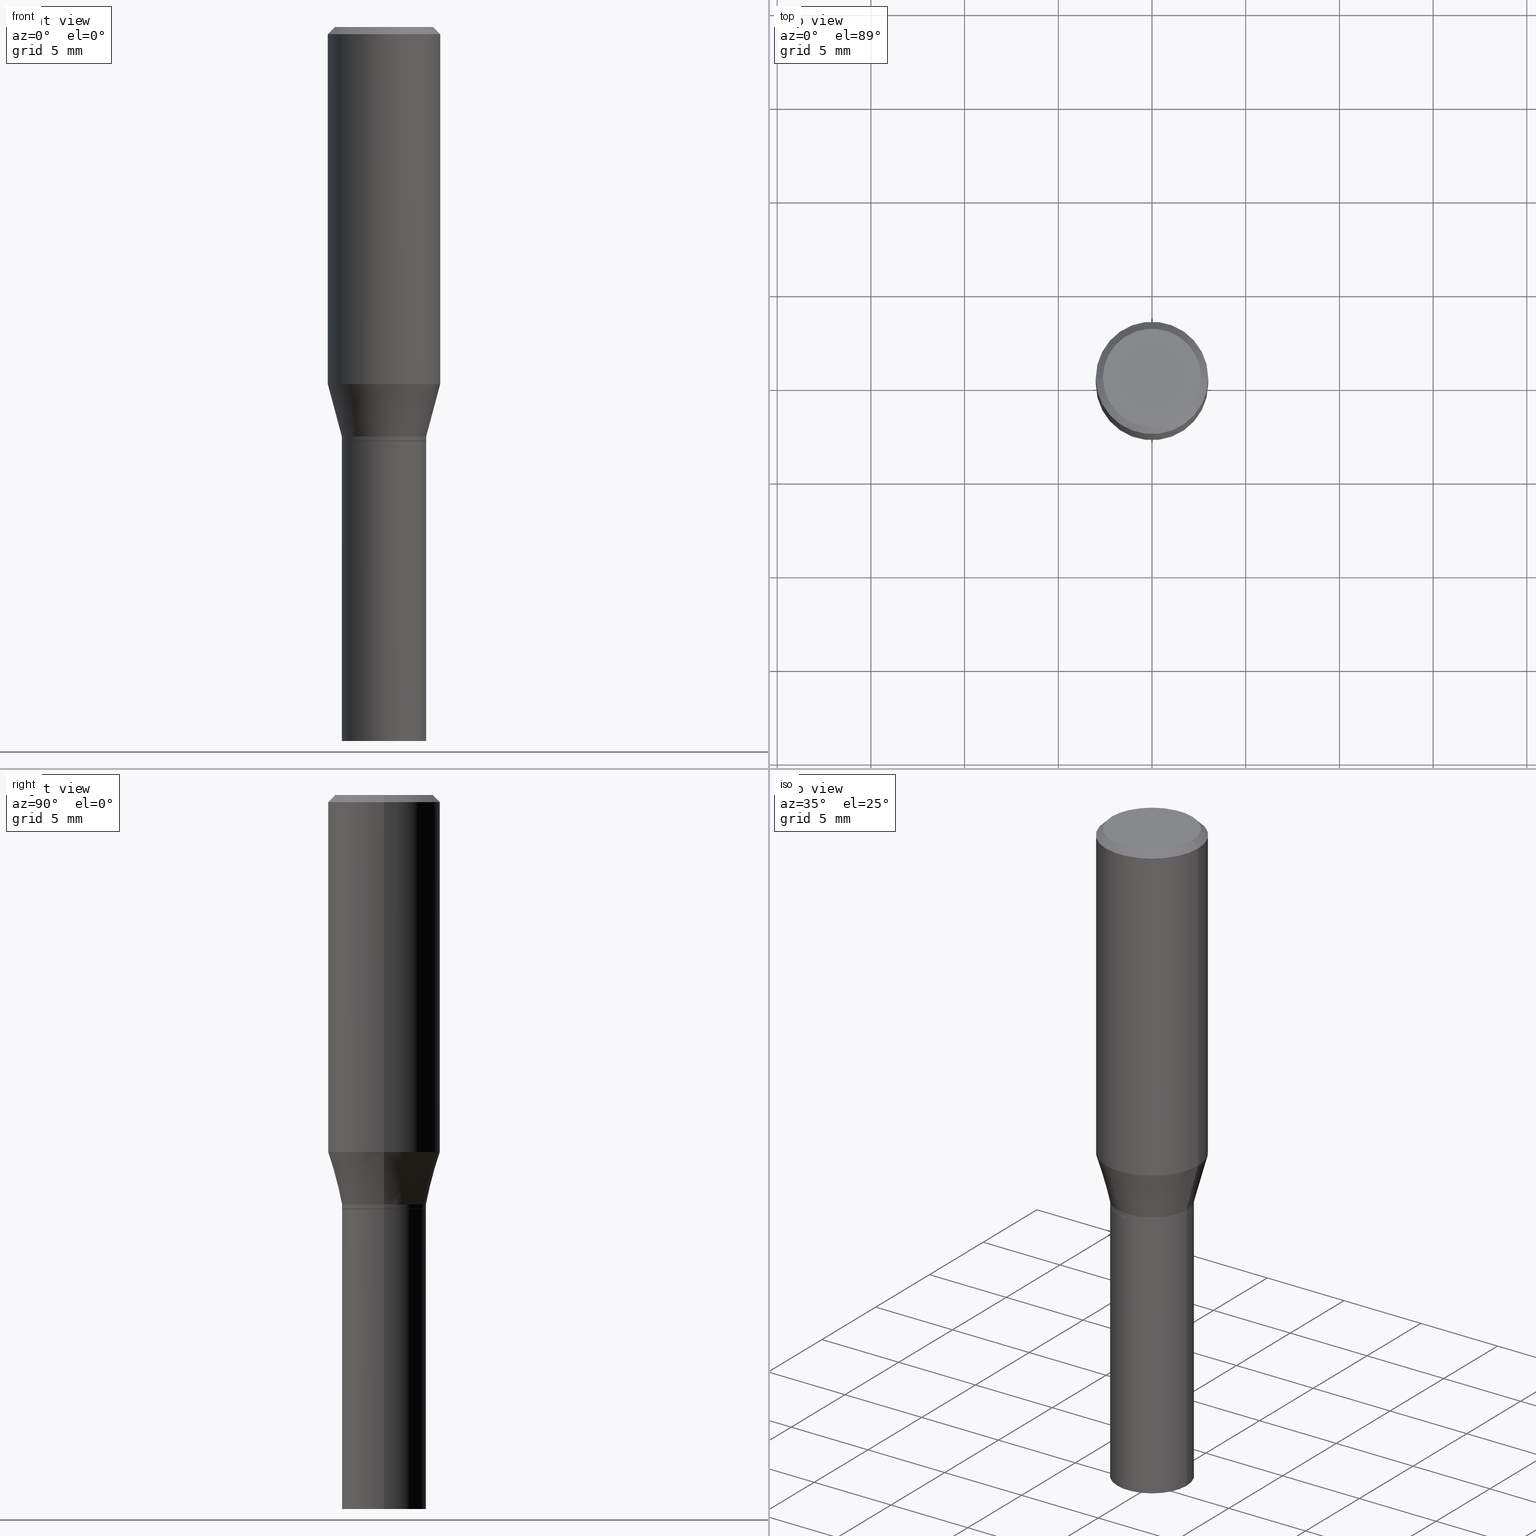
[diagram: canonical four-view strip — front | top / right | iso, engineering-drawing reading convention]
A machine part, canonical four-view strip (front | top / right | iso — engineering-drawing reading convention). The complete STEP part file that produces these views, byte-faithful:
ISO-10303-21;
HEADER;
FILE_DESCRIPTION (( 'STEP AP203' ),
    '1' );
FILE_NAME ('48785.STEP',
    '2024-03-12T19:49:54',
    ( '' ),
    ( '' ),
    'SwSTEP 2.0',
    'SolidWorks 2023',
    '' );
FILE_SCHEMA (( 'CONFIG_CONTROL_DESIGN' ));
ENDSEC;

DATA;
#1 = VECTOR ( 'NONE', #356, 39.37007874015748143 ) ;
#2 = CC_DESIGN_APPROVAL ( #143, ( #220 ) ) ;
#3 = CARTESIAN_POINT ( 'NONE',  ( 2.127802408261687534E-29, -3.037937912927421601E-15, -0.8701000000000000956 ) ) ;
#4 = DIRECTION ( 'NONE',  ( 1.000000000000000000, -6.982962677686265922E-15, 0.000000000000000000 ) ) ;
#5 = DIRECTION ( 'NONE',  ( 0.7071067811865516806, -7.319954787623268667E-15, -0.7071067811865431318 ) ) ;
#6 = PRODUCT ( '48785', '48785', '', ( #242 ) ) ;
#7 = ORIENTED_EDGE ( 'NONE', *, *, #451, .F. ) ;
#8 = AXIS2_PLACEMENT_3D ( 'NONE', #69, #457, #459 ) ;
#9 = PRODUCT_DEFINITION_FORMATION_WITH_SPECIFIED_SOURCE ( 'ANY', '', #6, .NOT_KNOWN. ) ;
#10 = CARTESIAN_POINT ( 'NONE',  ( 0.1180999999999999966, -8.625970336194650129E-16, -0.01499999999999999944 ) ) ;
#11 = ORIENTED_EDGE ( 'NONE', *, *, #74, .T. ) ;
#12 = EDGE_CURVE ( 'NONE', #95, #55, #344, .T. ) ;
#13 = DIRECTION ( 'NONE',  ( -2.445468806185136597E-29, 3.491481338843145583E-15, 1.000000000000000000 ) ) ;
#14 = ORIENTED_EDGE ( 'NONE', *, *, #290, .F. ) ;
#15 = DIRECTION ( 'NONE',  ( -2.445468806185136597E-29, 3.491481338843145583E-15, 1.000000000000000000 ) ) ;
#16 = VERTEX_POINT ( 'NONE', #105 ) ;
#17 = FACE_OUTER_BOUND ( 'NONE', #233, .T. ) ;
#18 = CIRCLE ( 'NONE', #329, 0.1180999999999999966 ) ;
#19 = ORIENTED_EDGE ( 'NONE', *, *, #67, .F. ) ;
#20 = COORDINATED_UNIVERSAL_TIME_OFFSET ( 5, 0, .BEHIND. ) ;
#21 = ORIENTED_EDGE ( 'NONE', *, *, #456, .F. ) ;
#22 =( CONVERSION_BASED_UNIT ( 'INCH', #170 ) LENGTH_UNIT ( ) NAMED_UNIT ( #465 ) );
#23 = FACE_OUTER_BOUND ( 'NONE', #200, .T. ) ;
#24 = APPLICATION_CONTEXT ( 'configuration controlled 3d designs of mechanical parts and assemblies' ) ;
#25 = CIRCLE ( 'NONE', #77, 0.1180999999999999966 ) ;
#26 = DATE_AND_TIME ( #411, #261 ) ;
#27 = CARTESIAN_POINT ( 'NONE',  ( -0.08859999999999995657, -2.373482235655541495E-15, -0.8601000000000001977 ) ) ;
#28 = VECTOR ( 'NONE', #153, 39.37007874015748143 ) ;
#29 = LOCAL_TIME ( 15, 49, 54.00000000000000000, #240 ) ;
#30 = CARTESIAN_POINT ( 'NONE',  ( 0.000000000000000000, 0.000000000000000000, 0.000000000000000000 ) ) ;
#31 = EDGE_LOOP ( 'NONE', ( #202, #88 ) ) ;
#32 = CC_DESIGN_DATE_AND_TIME_ASSIGNMENT ( #372, #103, ( #220 ) ) ;
#33 =( NAMED_UNIT ( * ) SI_UNIT ( $, .STERADIAN. ) SOLID_ANGLE_UNIT ( ) );
#34 = DIRECTION ( 'NONE',  ( 1.000000000000000000, -6.982962677686265922E-15, 0.000000000000000000 ) ) ;
#35 = PERSON ( 'UNSPECIFIED', 'UNSPECIFIED', 'UNSPECIFIED', ('UNSPECIFIED'), ('UNSPECIFIED'), ('UNSPECIFIED') ) ;
#36 = CALENDAR_DATE ( 2024, 12, 3 ) ;
#37 = FACE_OUTER_BOUND ( 'NONE', #194, .T. ) ;
#38 = AXIS2_PLACEMENT_3D ( 'NONE', #224, #54, #199 ) ;
#39 = CYLINDRICAL_SURFACE ( 'NONE', #90, 0.08860000000000008147 ) ;
#40 = APPROVAL_ROLE ( '' ) ;
#41 = EDGE_CURVE ( 'NONE', #132, #335, #18, .T. ) ;
#42 = DIRECTION ( 'NONE',  ( 1.000000000000000000, -6.982962677686264344E-15, 0.000000000000000000 ) ) ;
#43 = ORIENTED_EDGE ( 'NONE', *, *, #161, .T. ) ;
#44 = PLANE ( 'NONE',  #70 ) ;
#45 = ADVANCED_FACE ( 'NONE', ( #23 ), #277, .F. ) ;
#46 = CARTESIAN_POINT ( 'NONE',  ( -0.08860000000000017861, -2.406651308374549669E-15, -0.8696000000000000396 ) ) ;
#47 = CYLINDRICAL_SURFACE ( 'NONE', #38, 0.1180999999999999966 ) ;
#48 = DIRECTION ( 'NONE',  ( 1.000000000000000000, -6.982962677686266711E-15, 4.876176775795935232E-29 ) ) ;
#49 = ORIENTED_EDGE ( 'NONE', *, *, #320, .F. ) ;
#50 = EDGE_CURVE ( 'NONE', #66, #443, #217, .T. ) ;
#51 = VECTOR ( 'NONE', #177, 39.37007874015748143 ) ;
#52 = AXIS2_PLACEMENT_3D ( 'NONE', #312, #311, #309 ) ;
#53 = EDGE_CURVE ( 'NONE', #404, #164, #197, .T. ) ;
#54 = DIRECTION ( 'NONE',  ( -2.445468806185136597E-29, 3.491481338843145583E-15, 1.000000000000000000 ) ) ;
#55 = VERTEX_POINT ( 'NONE', #314 ) ;
#56 = LINE ( 'NONE', #359, #330 ) ;
#57 = VERTEX_POINT ( 'NONE', #112 ) ;
#58 = CARTESIAN_POINT ( 'NONE',  ( 0.08809999999999999776, -3.653136924831581152E-15, -0.8700999999999999845 ) ) ;
#59 = ORIENTED_EDGE ( 'NONE', *, *, #316, .T. ) ;
#60 = AXIS2_PLACEMENT_3D ( 'NONE', #305, #409, #84 ) ;
#61 = PERSON_AND_ORGANIZATION ( #35, #116 ) ;
#62 = ORIENTED_EDGE ( 'NONE', *, *, #397, .F. ) ;
#63 = PERSON_AND_ORGANIZATION ( #35, #116 ) ;
#64 = DIRECTION ( 'NONE',  ( -2.445468806185136597E-29, 3.491481338843145583E-15, 1.000000000000000000 ) ) ;
#65 = CALENDAR_DATE ( 2024, 12, 3 ) ;
#66 = VERTEX_POINT ( 'NONE', #248 ) ;
#67 = EDGE_CURVE ( 'NONE', #16, #348, #450, .T. ) ;
#68 = PERSON_AND_ORGANIZATION ( #35, #116 ) ;
#69 = CARTESIAN_POINT ( 'NONE',  ( 0.000000000000000000, 0.000000000000000000, 0.000000000000000000 ) ) ;
#70 = AXIS2_PLACEMENT_3D ( 'NONE', #114, #186, #219 ) ;
#71 = CC_DESIGN_APPROVAL ( #247, ( #9 ) ) ;
#72 = DIRECTION ( 'NONE',  ( 1.000000000000000000, -6.982962677686266711E-15, 0.000000000000000000 ) ) ;
#73 = LINE ( 'NONE', #288, #1 ) ;
#74 = EDGE_CURVE ( 'NONE', #164, #348, #175, .T. ) ;
#75 = SHAPE_DEFINITION_REPRESENTATION ( #398, #101 ) ;
#76 = CARTESIAN_POINT ( 'NONE',  ( 2.126579673858595013E-29, -3.036192172257999703E-15, -0.8696000000000000396 ) ) ;
#77 = AXIS2_PLACEMENT_3D ( 'NONE', #436, #360, #125 ) ;
#78 = CARTESIAN_POINT ( 'NONE',  ( 2.103347720199836549E-29, -3.003023099538990346E-15, -0.8601000000000001977 ) ) ;
#79 = EDGE_CURVE ( 'NONE', #443, #66, #82, .T. ) ;
#80 = DIRECTION ( 'NONE',  ( -2.445468806185136597E-29, 3.491481338843145583E-15, 1.000000000000000000 ) ) ;
#81 = DIRECTION ( 'NONE',  ( 1.000000000000000000, -6.982962677686265922E-15, 4.883331232093008327E-29 ) ) ;
#82 = CIRCLE ( 'NONE', #52, 0.08859999999999999820 ) ;
#83 = LINE ( 'NONE', #10, #251 ) ;
#84 = DIRECTION ( 'NONE',  ( 1.000000000000000000, -6.982962677686264344E-15, 0.000000000000000000 ) ) ;
#85 = EDGE_LOOP ( 'NONE', ( #126, #229, #140, #347 ) ) ;
#86 = ADVANCED_FACE ( 'NONE', ( #454 ), #115, .T. ) ;
#87 = DIRECTION ( 'NONE',  ( -2.445468806185136877E-29, 3.491481338843145188E-15, 1.000000000000000000 ) ) ;
#88 = ORIENTED_EDGE ( 'NONE', *, *, #238, .F. ) ;
#89 = AXIS2_PLACEMENT_3D ( 'NONE', #203, #434, #336 ) ;
#90 = AXIS2_PLACEMENT_3D ( 'NONE', #259, #80, #325 ) ;
#91 = ADVANCED_FACE ( 'NONE', ( #109 ), #243, .T. ) ;
#92 = AXIS2_PLACEMENT_3D ( 'NONE', #405, #232, #228 ) ;
#93 = CC_DESIGN_PERSON_AND_ORGANIZATION_ASSIGNMENT ( #236, #343, ( #9 ) ) ;
#94 = FACE_OUTER_BOUND ( 'NONE', #85, .T. ) ;
#95 = VERTEX_POINT ( 'NONE', #447 ) ;
#96 = DIRECTION ( 'NONE',  ( 1.000000000000000000, -6.982962677686267499E-15, 4.876176775795935793E-29 ) ) ;
#97 = ORIENTED_EDGE ( 'NONE', *, *, #408, .T. ) ;
#98 = ADVANCED_FACE ( 'NONE', ( #386 ), #169, .F. ) ;
#99 =( LENGTH_UNIT ( ) NAMED_UNIT ( * ) SI_UNIT ( $, .METRE. ) );
#100 = ORIENTED_EDGE ( 'NONE', *, *, #107, .T. ) ;
#101 = ADVANCED_BREP_SHAPE_REPRESENTATION ( '48785', ( #252, #249, #310 ), #270 ) ;
#102 = AXIS2_PLACEMENT_3D ( 'NONE', #381, #64, #178 ) ;
#103 = DATE_TIME_ROLE ( 'creation_date' ) ;
#104 = LOCAL_TIME ( 15, 49, 54.00000000000000000, #284 ) ;
#105 = CARTESIAN_POINT ( 'NONE',  ( 0.08860000000000017861, -3.654882665501004233E-15, -0.8696000000000000396 ) ) ;
#106 = PERSON_AND_ORGANIZATION ( #35, #116 ) ;
#107 = EDGE_CURVE ( 'NONE', #57, #370, #294, .T. ) ;
#108 = CARTESIAN_POINT ( 'NONE',  ( 2.126579673858595013E-29, -3.036192172257999703E-15, -0.8696000000000000396 ) ) ;
#109 = FACE_OUTER_BOUND ( 'NONE', #413, .T. ) ;
#110 = PERSON_AND_ORGANIZATION ( #35, #116 ) ;
#111 = DIRECTION ( 'NONE',  ( -0.2588190451025210170, 5.211531920934547886E-15, 0.9659258262890682012 ) ) ;
#112 = CARTESIAN_POINT ( 'NONE',  ( -0.1031000000000000111, 7.461295621107772493E-16, -1.900413116462341961E-16 ) ) ;
#113 = DIRECTION ( 'NONE',  ( -2.445468806185136597E-29, 3.491481338843145583E-15, 1.000000000000000000 ) ) ;
#114 = CARTESIAN_POINT ( 'NONE',  ( 6.186904932430243507E-16, 0.08859999999999695897, -0.8701000000000003176 ) ) ;
#115 = CONICAL_SURFACE ( 'NONE', #338, 0.08859999999999995657, 0.2617993877991496854 ) ;
#116 = ORGANIZATION ( 'UNSPECIFIED', 'UNSPECIFIED', '' ) ;
#117 = CARTESIAN_POINT ( 'NONE',  ( 3.668203209277705088E-31, -5.237222008264718399E-17, -0.01499999999999999944 ) ) ;
#118 = EDGE_CURVE ( 'NONE', #66, #209, #149, .T. ) ;
#119 = CC_DESIGN_PERSON_AND_ORGANIZATION_ASSIGNMENT ( #339, #453, ( #220 ) ) ;
#120 = CARTESIAN_POINT ( 'NONE',  ( 4.647400995173613138E-45, -6.635256932220833331E-31, -1.900413116462290932E-16 ) ) ;
#121 = CARTESIAN_POINT ( 'NONE',  ( -0.08809999999999999776, -2.409300535548661264E-15, -0.8700999999999999845 ) ) ;
#122 = AXIS2_PLACEMENT_3D ( 'NONE', #462, #151, #189 ) ;
#123 = DIRECTION ( 'NONE',  ( -2.445468806185136597E-29, 3.491481338843145583E-15, 1.000000000000000000 ) ) ;
#124 = EDGE_LOOP ( 'NONE', ( #378, #295, #272, #235 ) ) ;
#125 = DIRECTION ( 'NONE',  ( 1.000000000000000000, -6.982962677686265133E-15, 0.000000000000000000 ) ) ;
#126 = ORIENTED_EDGE ( 'NONE', *, *, #67, .T. ) ;
#127 = CARTESIAN_POINT ( 'NONE',  ( 0.000000000000000000, 0.000000000000000000, 0.000000000000000000 ) ) ;
#128 = EDGE_LOOP ( 'NONE', ( #437, #225, #180, #262 ) ) ;
#129 = AXIS2_PLACEMENT_3D ( 'NONE', #78, #113, #285 ) ;
#130 = EDGE_CURVE ( 'NONE', #348, #16, #146, .T. ) ;
#131 = CARTESIAN_POINT ( 'NONE',  ( 0.08860000000000008147, -6.186904932430038403E-16, 4.320292623355202969E-30 ) ) ;
#132 = VERTEX_POINT ( 'NONE', #183 ) ;
#133 = DIRECTION ( 'NONE',  ( -1.000000000000000000, 6.982962677686266711E-15, 0.000000000000000000 ) ) ;
#134 = ORIENTED_EDGE ( 'NONE', *, *, #371, .T. ) ;
#135 = PERSON_AND_ORGANIZATION ( #35, #116 ) ;
#136 = DIRECTION ( 'NONE',  ( -1.000000000000000000, 6.982962677686265922E-15, -4.876176775795935793E-29 ) ) ;
#137 = AXIS2_PLACEMENT_3D ( 'NONE', #267, #13, #48 ) ;
#138 = APPROVAL_ROLE ( '' ) ;
#139 = AXIS2_PLACEMENT_3D ( 'NONE', #441, #201, #234 ) ;
#140 = ORIENTED_EDGE ( 'NONE', *, *, #181, .F. ) ;
#141 = PERSON_AND_ORGANIZATION_ROLE ( 'classification_officer' ) ;
#142 = CARTESIAN_POINT ( 'NONE',  ( 2.103347720199836549E-29, -3.003023099538990346E-15, -0.8601000000000001977 ) ) ;
#143 = APPROVAL ( #377, 'UNSPECIFIED' ) ;
#144 = APPROVAL_DATE_TIME ( #455, #247 ) ;
#145 = DIRECTION ( 'NONE',  ( 1.000000000000000000, -6.982962677686265922E-15, 4.876176775795935793E-29 ) ) ;
#146 = CIRCLE ( 'NONE', #230, 0.08860000000000017861 ) ;
#147 = ORIENTED_EDGE ( 'NONE', *, *, #316, .F. ) ;
#148 = AXIS2_PLACEMENT_3D ( 'NONE', #426, #258, #292 ) ;
#149 = LINE ( 'NONE', #291, #173 ) ;
#150 = DIRECTION ( 'NONE',  ( -2.445468806185136597E-29, 3.491481338843145583E-15, 1.000000000000000000 ) ) ;
#151 = DIRECTION ( 'NONE',  ( -2.445468806185136597E-29, 3.491481338843145583E-15, 1.000000000000000000 ) ) ;
#152 = AXIS2_PLACEMENT_3D ( 'NONE', #422, #417, #279 ) ;
#153 = DIRECTION ( 'NONE',  ( -2.445468806185136877E-29, 3.491481338843145188E-15, 1.000000000000000000 ) ) ;
#154 = DIRECTION ( 'NONE',  ( -2.445468806185136597E-29, 3.491481338843145583E-15, 1.000000000000000000 ) ) ;
#155 = EDGE_CURVE ( 'NONE', #443, #407, #286, .T. ) ;
#156 = DIRECTION ( 'NONE',  ( 2.445468806185136597E-29, -3.491481338843145583E-15, -1.000000000000000000 ) ) ;
#157 = EDGE_LOOP ( 'NONE', ( #368, #11, #19, #420 ) ) ;
#158 = CONICAL_SURFACE ( 'NONE', #414, 0.08859999999999995657, 0.2617993877991496854 ) ;
#159 = VECTOR ( 'NONE', #265, 39.37007874015748143 ) ;
#160 = FACE_OUTER_BOUND ( 'NONE', #124, .T. ) ;
#161 = EDGE_CURVE ( 'NONE', #404, #16, #73, .T. ) ;
#162 = ORIENTED_EDGE ( 'NONE', *, *, #401, .F. ) ;
#163 = DIRECTION ( 'NONE',  ( -0.7071067811865516806, 2.468850131082300842E-15, -0.7071067811865431318 ) ) ;
#164 = VERTEX_POINT ( 'NONE', #121 ) ;
#165 = DIRECTION ( 'NONE',  ( 1.000000000000000000, -6.982962677686266711E-15, 4.876176775795935232E-29 ) ) ;
#166 = ORIENTED_EDGE ( 'NONE', *, *, #155, .T. ) ;
#167 = CARTESIAN_POINT ( 'NONE',  ( 0.1180999999999999966, -8.246878922347480654E-16, 5.758764772215000440E-30 ) ) ;
#168 = ORIENTED_EDGE ( 'NONE', *, *, #290, .T. ) ;
#169 = PLANE ( 'NONE',  #421 ) ;
#170 = LENGTH_MEASURE_WITH_UNIT ( LENGTH_MEASURE( 0.02539999999999999897 ), #99 );
#171 = CARTESIAN_POINT ( 'NONE',  ( -0.08809999999999999776, -2.411949762722772465E-15, -0.8700999999999999845 ) ) ;
#172 = VECTOR ( 'NONE', #163, 39.37007874015748854 ) ;
#173 = VECTOR ( 'NONE', #254, 39.37007874015748143 ) ;
#174 = VECTOR ( 'NONE', #296, 39.37007874015748143 ) ;
#175 = LINE ( 'NONE', #171, #282 ) ;
#176 = ADVANCED_FACE ( 'NONE', ( #429 ), #269, .T. ) ;
#177 = DIRECTION ( 'NONE',  ( -2.445468806185136877E-29, 3.491481338843145188E-15, 1.000000000000000000 ) ) ;
#178 = DIRECTION ( 'NONE',  ( 1.000000000000000000, -6.982962677686264344E-15, 0.000000000000000000 ) ) ;
#179 = COORDINATED_UNIVERSAL_TIME_OFFSET ( 5, 0, .BEHIND. ) ;
#180 = ORIENTED_EDGE ( 'NONE', *, *, #41, .T. ) ;
#181 = EDGE_CURVE ( 'NONE', #331, #95, #395, .T. ) ;
#182 = AXIS2_PLACEMENT_3D ( 'NONE', #466, #432, #42 ) ;
#183 = CARTESIAN_POINT ( 'NONE',  ( 0.1180999999999999966, -8.770601123173952432E-16, -0.01499999999999999944 ) ) ;
#184 = AXIS2_PLACEMENT_3D ( 'NONE', #127, #123, #96 ) ;
#185 = PRODUCT_RELATED_PRODUCT_CATEGORY ( 'detail', '', ( #6 ) ) ;
#186 = DIRECTION ( 'NONE',  ( 2.438088387897960049E-29, -3.491481338843145188E-15, -1.000000000000000000 ) ) ;
#187 = ADVANCED_FACE ( 'NONE', ( #216 ), #39, .T. ) ;
#188 = DIRECTION ( 'NONE',  ( -1.000000000000000000, 6.982962677686266711E-15, 0.000000000000000000 ) ) ;
#189 = DIRECTION ( 'NONE',  ( 1.000000000000000000, -6.982962677686263555E-15, 0.000000000000000000 ) ) ;
#190 = AXIS2_PLACEMENT_3D ( 'NONE', #319, #221, #257 ) ;
#191 = FACE_OUTER_BOUND ( 'NONE', #157, .T. ) ;
#192 = VERTEX_POINT ( 'NONE', #350 ) ;
#193 = CARTESIAN_POINT ( 'NONE',  ( 2.103347720199836549E-29, -3.003023099538990346E-15, -0.8601000000000001977 ) ) ;
#194 = EDGE_LOOP ( 'NONE', ( #168, #196 ) ) ;
#195 = CARTESIAN_POINT ( 'NONE',  ( 3.668203209277705088E-31, -5.237222008264718399E-17, -0.01499999999999999944 ) ) ;
#196 = ORIENTED_EDGE ( 'NONE', *, *, #425, .T. ) ;
#197 = CIRCLE ( 'NONE', #102, 0.08809999999999999776 ) ;
#198 = CIRCLE ( 'NONE', #92, 0.08859999999999995657 ) ;
#199 = DIRECTION ( 'NONE',  ( 1.000000000000000000, -6.982962677686266711E-15, 4.876176775795936353E-29 ) ) ;
#200 = EDGE_LOOP ( 'NONE', ( #207, #299 ) ) ;
#201 = DIRECTION ( 'NONE',  ( -2.445468806185136597E-29, 3.491481338843145583E-15, 1.000000000000000000 ) ) ;
#202 = ORIENTED_EDGE ( 'NONE', *, *, #53, .F. ) ;
#203 = CARTESIAN_POINT ( 'NONE',  ( 3.668203209277705088E-31, -5.237222008264718399E-17, -0.01499999999999999944 ) ) ;
#204 = ORIENTED_EDGE ( 'NONE', *, *, #392, .T. ) ;
#205 = AXIS2_PLACEMENT_3D ( 'NONE', #195, #156, #133 ) ;
#206 = SECURITY_CLASSIFICATION_LEVEL ( 'unclassified' ) ;
#207 = ORIENTED_EDGE ( 'NONE', *, *, #50, .F. ) ;
#208 = CARTESIAN_POINT ( 'NONE',  ( 3.668203209277705088E-31, -5.237222008264718399E-17, -0.01499999999999999944 ) ) ;
#209 = VERTEX_POINT ( 'NONE', #355 ) ;
#210 = APPROVAL_PERSON_ORGANIZATION ( #68, #143, #213 ) ;
#211 = CALENDAR_DATE ( 2024, 12, 3 ) ;
#212 = CARTESIAN_POINT ( 'NONE',  ( 7.199434520694541042E-16, 0.1031000000000000111, -4.549923818578428559E-16 ) ) ;
#213 = APPROVAL_ROLE ( '' ) ;
#214 = DIRECTION ( 'NONE',  ( -0.7071067811867527420, 7.493145998871095689E-15, 0.7071067811863422925 ) ) ;
#215 = ADVANCED_FACE ( 'NONE', ( #391 ), #424, .F. ) ;
#216 = FACE_OUTER_BOUND ( 'NONE', #439, .T. ) ;
#217 = CIRCLE ( 'NONE', #152, 0.08859999999999999820 ) ;
#218 = CARTESIAN_POINT ( 'NONE',  ( -0.08859999999999999820, 6.295408638834487519E-16, -4.358176489965846267E-30 ) ) ;
#219 = DIRECTION ( 'NONE',  ( -1.000000000000000000, 6.982962677686265922E-15, -4.876176775795935793E-29 ) ) ;
#220 = PRODUCT_DEFINITION ( 'UNKNOWN', '', #9, #351 ) ;
#221 = DIRECTION ( 'NONE',  ( -2.445468806185136597E-29, 3.491481338843145583E-15, 1.000000000000000000 ) ) ;
#222 = CARTESIAN_POINT ( 'NONE',  ( 0.08859999999999995657, -3.621713592781993299E-15, -0.8601000000000001977 ) ) ;
#223 = CONICAL_SURFACE ( 'NONE', #60, 0.08809999999999999776, 0.7853981633977384913 ) ;
#224 = CARTESIAN_POINT ( 'NONE',  ( 0.000000000000000000, 0.000000000000000000, 0.000000000000000000 ) ) ;
#225 = ORIENTED_EDGE ( 'NONE', *, *, #451, .T. ) ;
#226 = FACE_OUTER_BOUND ( 'NONE', #276, .T. ) ;
#227 = EDGE_LOOP ( 'NONE', ( #342, #166, #14, #365 ) ) ;
#228 = DIRECTION ( 'NONE',  ( 1.000000000000000000, -6.982962677686266711E-15, 0.000000000000000000 ) ) ;
#229 = ORIENTED_EDGE ( 'NONE', *, *, #320, .T. ) ;
#230 = AXIS2_PLACEMENT_3D ( 'NONE', #76, #150, #4 ) ;
#231 = APPROVAL_PERSON_ORGANIZATION ( #63, #247, #138 ) ;
#232 = DIRECTION ( 'NONE',  ( -2.445468806185136597E-29, 3.491481338843145583E-15, 1.000000000000000000 ) ) ;
#233 = EDGE_LOOP ( 'NONE', ( #7, #308, #97, #274 ) ) ;
#234 = DIRECTION ( 'NONE',  ( 1.000000000000000000, -6.982962677686263555E-15, 0.000000000000000000 ) ) ;
#235 = ORIENTED_EDGE ( 'NONE', *, *, #425, .F. ) ;
#236 = PERSON_AND_ORGANIZATION ( #35, #116 ) ;
#237 = ORIENTED_EDGE ( 'NONE', *, *, #464, .T. ) ;
#238 = EDGE_CURVE ( 'NONE', #164, #404, #382, .T. ) ;
#239 = CARTESIAN_POINT ( 'NONE',  ( 3.576687321579069994E-29, -5.368277968210015545E-15, -1.500000000000000222 ) ) ;
#240 = COORDINATED_UNIVERSAL_TIME_OFFSET ( 5, 0, .BEHIND. ) ;
#241 = EDGE_LOOP ( 'NONE', ( #100, #337 ) ) ;
#242 = MECHANICAL_CONTEXT ( 'NONE', #415, 'mechanical' ) ;
#243 = CYLINDRICAL_SURFACE ( 'NONE', #8, 0.1180999999999999966 ) ;
#244 = CLOSED_SHELL ( 'NONE', ( #367, #349, #287, #91, #357, #86, #352, #440, #98, #215, #176, #187 ) ) ;
#245 = APPROVAL_DATE_TIME ( #26, #143 ) ;
#246 = DIRECTION ( 'NONE',  ( -2.445468806185136597E-29, 3.491481338843145583E-15, 1.000000000000000000 ) ) ;
#247 = APPROVAL ( #446, 'UNSPECIFIED' ) ;
#248 = CARTESIAN_POINT ( 'NONE',  ( 0.08859999999999999820, -5.855912501507721918E-15, -1.500000000000000222 ) ) ;
#249 = MANIFOLD_SOLID_BREP ( 'Body-Move/Copy2[2]', #244 ) ;
#250 = DIRECTION ( 'NONE',  ( 1.000000000000000000, -6.982962677686265922E-15, 4.876176775795935793E-29 ) ) ;
#251 = VECTOR ( 'NONE', #5, 39.37007874015748854 ) ;
#252 = MANIFOLD_SOLID_BREP ( 'Body-Move/Copy2[1]', #406 ) ;
#253 = AXIS2_PLACEMENT_3D ( 'NONE', #108, #246, #34 ) ;
#254 = DIRECTION ( 'NONE',  ( -2.445468806185136877E-29, 3.491481338843145188E-15, 1.000000000000000000 ) ) ;
#255 = AXIS2_PLACEMENT_3D ( 'NONE', #334, #15, #165 ) ;
#256 = ADVANCED_FACE ( 'NONE', ( #37 ), #44, .F. ) ;
#257 = DIRECTION ( 'NONE',  ( 1.000000000000000000, -6.982962677686265133E-15, 0.000000000000000000 ) ) ;
#258 = DIRECTION ( 'NONE',  ( -2.445468806185136597E-29, 3.491481338843145583E-15, 1.000000000000000000 ) ) ;
#259 = CARTESIAN_POINT ( 'NONE',  ( 0.000000000000000000, 0.000000000000000000, 0.000000000000000000 ) ) ;
#260 = VECTOR ( 'NONE', #431, 39.37007874015748143 ) ;
#261 = LOCAL_TIME ( 15, 49, 54.00000000000000000, #179 ) ;
#262 = ORIENTED_EDGE ( 'NONE', *, *, #408, .F. ) ;
#263 = CARTESIAN_POINT ( 'NONE',  ( 0.08859999999999995657, -3.621713592781993299E-15, -0.8601000000000001977 ) ) ;
#264 = ORIENTED_EDGE ( 'NONE', *, *, #456, .T. ) ;
#265 = DIRECTION ( 'NONE',  ( -2.445468806185136877E-29, 3.491481338843145188E-15, 1.000000000000000000 ) ) ;
#266 = ORIENTED_EDGE ( 'NONE', *, *, #427, .F. ) ;
#267 = CARTESIAN_POINT ( 'NONE',  ( 0.000000000000000000, 0.000000000000000000, 0.000000000000000000 ) ) ;
#268 = EDGE_LOOP ( 'NONE', ( #297, #410, #264, #147 ) ) ;
#269 = CONICAL_SURFACE ( 'NONE', #148, 0.08809999999999999776, 0.7853981633977384913 ) ;
#270 =( GEOMETRIC_REPRESENTATION_CONTEXT ( 3 ) GLOBAL_UNCERTAINTY_ASSIGNED_CONTEXT ( ( #402 ) ) GLOBAL_UNIT_ASSIGNED_CONTEXT ( ( #22, #341, #33 ) ) REPRESENTATION_CONTEXT ( 'NONE', 'WORKASPACE' ) );
#271 = FACE_OUTER_BOUND ( 'NONE', #333, .T. ) ;
#272 = ORIENTED_EDGE ( 'NONE', *, *, #118, .T. ) ;
#273 = APPLICATION_PROTOCOL_DEFINITION ( 'international standard', 'config_control_design', 1994, #415 ) ;
#274 = ORIENTED_EDGE ( 'NONE', *, *, #427, .T. ) ;
#275 = PERSON_AND_ORGANIZATION_ROLE ( 'design_supplier' ) ;
#276 = EDGE_LOOP ( 'NONE', ( #445, #361, #327, #21 ) ) ;
#277 = PLANE ( 'NONE',  #389 ) ;
#278 = DATE_AND_TIME ( #211, #390 ) ;
#279 = DIRECTION ( 'NONE',  ( 1.000000000000000000, -6.982962677686269077E-15, 0.000000000000000000 ) ) ;
#280 = COORDINATED_UNIVERSAL_TIME_OFFSET ( 5, 0, .BEHIND. ) ;
#281 = ORIENTED_EDGE ( 'NONE', *, *, #130, .F. ) ;
#282 = VECTOR ( 'NONE', #214, 39.37007874015748143 ) ;
#283 = DIRECTION ( 'NONE',  ( 1.000000000000000000, -6.982962677686266711E-15, 0.000000000000000000 ) ) ;
#284 = COORDINATED_UNIVERSAL_TIME_OFFSET ( 5, 0, .BEHIND. ) ;
#285 = DIRECTION ( 'NONE',  ( 1.000000000000000000, -6.982962677686266711E-15, 0.000000000000000000 ) ) ;
#286 = LINE ( 'NONE', #218, #28 ) ;
#287 = ADVANCED_FACE ( 'NONE', ( #387 ), #460, .T. ) ;
#288 = CARTESIAN_POINT ( 'NONE',  ( 0.08809999999999999776, -3.653136924831581152E-15, -0.8700999999999999845 ) ) ;
#289 = CONICAL_SURFACE ( 'NONE', #205, 0.1180999999999999966, 0.7853981633974543852 ) ;
#290 = EDGE_CURVE ( 'NONE', #209, #407, #433, .T. ) ;
#291 = CARTESIAN_POINT ( 'NONE',  ( 0.08859999999999999820, -6.186904932430032487E-16, 4.320292623355198765E-30 ) ) ;
#292 = DIRECTION ( 'NONE',  ( 1.000000000000000000, -6.982962677686264344E-15, 0.000000000000000000 ) ) ;
#293 = LINE ( 'NONE', #263, #174 ) ;
#294 = CIRCLE ( 'NONE', #363, 0.1031000000000000111 ) ;
#295 = ORIENTED_EDGE ( 'NONE', *, *, #79, .T. ) ;
#296 = DIRECTION ( 'NONE',  ( 0.2588190451025210170, 1.565188264969624531E-15, 0.9659258262890682012 ) ) ;
#297 = ORIENTED_EDGE ( 'NONE', *, *, #12, .F. ) ;
#298 = CYLINDRICAL_SURFACE ( 'NONE', #255, 0.08859999999999999820 ) ;
#299 = ORIENTED_EDGE ( 'NONE', *, *, #79, .F. ) ;
#300 = CC_DESIGN_PERSON_AND_ORGANIZATION_ASSIGNMENT ( #106, #307, ( #6 ) ) ;
#301 = CC_DESIGN_DATE_AND_TIME_ASSIGNMENT ( #278, #419, ( #323 ) ) ;
#302 = LINE ( 'NONE', #131, #51 ) ;
#303 = ORIENTED_EDGE ( 'NONE', *, *, #74, .F. ) ;
#304 = AXIS2_PLACEMENT_3D ( 'NONE', #120, #394, #81 ) ;
#305 = CARTESIAN_POINT ( 'NONE',  ( 2.127802408261687534E-29, -3.037937912927420812E-15, -0.8700999999999999845 ) ) ;
#306 = ORIENTED_EDGE ( 'NONE', *, *, #392, .F. ) ;
#307 = PERSON_AND_ORGANIZATION_ROLE ( 'design_owner' ) ;
#308 = ORIENTED_EDGE ( 'NONE', *, *, #107, .F. ) ;
#309 = DIRECTION ( 'NONE',  ( 1.000000000000000000, -6.982962677686269077E-15, 0.000000000000000000 ) ) ;
#310 = AXIS2_PLACEMENT_3D ( 'NONE', #30, #416, #375 ) ;
#311 = DIRECTION ( 'NONE',  ( -2.445468806185136597E-29, 3.491481338843145583E-15, 1.000000000000000000 ) ) ;
#312 = CARTESIAN_POINT ( 'NONE',  ( 3.668203209277704895E-29, -5.237222008264718177E-15, -1.500000000000000222 ) ) ;
#313 = CALENDAR_DATE ( 2024, 12, 3 ) ;
#314 = CARTESIAN_POINT ( 'NONE',  ( -0.1180999999999999966, -1.779475748974195504E-15, -0.7500045011767182412 ) ) ;
#315 = AXIS2_PLACEMENT_3D ( 'NONE', #117, #317, #188 ) ;
#316 = EDGE_CURVE ( 'NONE', #55, #192, #321, .T. ) ;
#317 = DIRECTION ( 'NONE',  ( 2.445468806185136597E-29, -3.491481338843145583E-15, -1.000000000000000000 ) ) ;
#318 = CARTESIAN_POINT ( 'NONE',  ( 4.647400995173613138E-45, -6.635256932220833331E-31, -1.900413116462290932E-16 ) ) ;
#319 = CARTESIAN_POINT ( 'NONE',  ( 1.834112612126108016E-29, -2.618626719906874095E-15, -0.7500045011767182412 ) ) ;
#320 = EDGE_CURVE ( 'NONE', #348, #95, #393, .T. ) ;
#321 = CIRCLE ( 'NONE', #190, 0.1180999999999999966 ) ;
#322 = CARTESIAN_POINT ( 'NONE',  ( -0.08860000000000008147, 6.295408638834493435E-16, -4.358176489965850471E-30 ) ) ;
#323 = SECURITY_CLASSIFICATION ( '', '', #206 ) ;
#324 = EDGE_CURVE ( 'NONE', #370, #57, #374, .T. ) ;
#325 = DIRECTION ( 'NONE',  ( 1.000000000000000000, -6.982962677686267499E-15, 4.876176775795935793E-29 ) ) ;
#326 = CARTESIAN_POINT ( 'NONE',  ( -0.1180999999999999966, 7.723156721521009862E-16, -0.01499999999999999944 ) ) ;
#327 = ORIENTED_EDGE ( 'NONE', *, *, #371, .F. ) ;
#328 = CYLINDRICAL_SURFACE ( 'NONE', #184, 0.08860000000000008147 ) ;
#329 = AXIS2_PLACEMENT_3D ( 'NONE', #208, #449, #283 ) ;
#330 = VECTOR ( 'NONE', #87, 39.37007874015748143 ) ;
#331 = VERTEX_POINT ( 'NONE', #222 ) ;
#332 = DIRECTION ( 'NONE',  ( 1.000000000000000000, -6.982962677686266711E-15, 0.000000000000000000 ) ) ;
#333 = EDGE_LOOP ( 'NONE', ( #62, #59, #204, #266 ) ) ;
#334 = CARTESIAN_POINT ( 'NONE',  ( 0.000000000000000000, 0.000000000000000000, 0.000000000000000000 ) ) ;
#335 = VERTEX_POINT ( 'NONE', #358 ) ;
#336 = DIRECTION ( 'NONE',  ( 1.000000000000000000, -6.982962677686266711E-15, 0.000000000000000000 ) ) ;
#337 = ORIENTED_EDGE ( 'NONE', *, *, #324, .T. ) ;
#338 = AXIS2_PLACEMENT_3D ( 'NONE', #142, #418, #72 ) ;
#339 = PERSON_AND_ORGANIZATION ( #35, #116 ) ;
#340 = DIRECTION ( 'NONE',  ( 2.438088387897960049E-29, -3.491481338843145188E-15, -1.000000000000000000 ) ) ;
#341 =( NAMED_UNIT ( * ) PLANE_ANGLE_UNIT ( ) SI_UNIT ( $, .RADIAN. ) );
#342 = ORIENTED_EDGE ( 'NONE', *, *, #50, .T. ) ;
#343 = PERSON_AND_ORGANIZATION_ROLE ( 'creator' ) ;
#344 = LINE ( 'NONE', #27, #442 ) ;
#345 = AXIS2_PLACEMENT_3D ( 'NONE', #3, #354, #250 ) ;
#346 = APPROVAL_PERSON_ORGANIZATION ( #110, #430, #40 ) ;
#347 = ORIENTED_EDGE ( 'NONE', *, *, #464, .F. ) ;
#348 = VERTEX_POINT ( 'NONE', #46 ) ;
#349 = ADVANCED_FACE ( 'NONE', ( #191 ), #223, .T. ) ;
#350 = CARTESIAN_POINT ( 'NONE',  ( 0.1180999999999999966, -3.443314612141622358E-15, -0.7500045011767182412 ) ) ;
#351 = DESIGN_CONTEXT ( 'detailed design', #24, 'design' ) ;
#352 = ADVANCED_FACE ( 'NONE', ( #271 ), #47, .T. ) ;
#353 = CC_DESIGN_SECURITY_CLASSIFICATION ( #323, ( #9 ) ) ;
#354 = DIRECTION ( 'NONE',  ( -2.438088387897960049E-29, 3.491481338843145188E-15, 1.000000000000000000 ) ) ;
#355 = CARTESIAN_POINT ( 'NONE',  ( 0.08859999999999999820, -3.656628406170424159E-15, -0.8701000000000000956 ) ) ;
#356 = DIRECTION ( 'NONE',  ( 0.7071067811867527420, -2.468850131084406312E-15, 0.7071067811863422925 ) ) ;
#357 = ADVANCED_FACE ( 'NONE', ( #226 ), #158, .T. ) ;
#358 = CARTESIAN_POINT ( 'NONE',  ( -0.1180999999999999966, -4.963484990620821929E-16, -0.01499999999999999944 ) ) ;
#359 = CARTESIAN_POINT ( 'NONE',  ( -0.1180999999999999966, 8.391509709326782957E-16, -5.809262341591043784E-30 ) ) ;
#360 = DIRECTION ( 'NONE',  ( -2.445468806185136597E-29, 3.491481338843145583E-15, 1.000000000000000000 ) ) ;
#361 = ORIENTED_EDGE ( 'NONE', *, *, #12, .T. ) ;
#362 = LINE ( 'NONE', #326, #172 ) ;
#363 = AXIS2_PLACEMENT_3D ( 'NONE', #318, #154, #463 ) ;
#364 = CIRCLE ( 'NONE', #89, 0.1180999999999999966 ) ;
#365 = ORIENTED_EDGE ( 'NONE', *, *, #118, .F. ) ;
#366 = CYLINDRICAL_SURFACE ( 'NONE', #137, 0.08859999999999999820 ) ;
#367 = ADVANCED_FACE ( 'NONE', ( #94 ), #328, .T. ) ;
#368 = ORIENTED_EDGE ( 'NONE', *, *, #53, .T. ) ;
#369 = CARTESIAN_POINT ( 'NONE',  ( -0.08859999999999999820, -3.508039096712621630E-15, -0.8701000000000000956 ) ) ;
#370 = VERTEX_POINT ( 'NONE', #399 ) ;
#371 = EDGE_CURVE ( 'NONE', #192, #55, #25, .T. ) ;
#372 = DATE_AND_TIME ( #313, #428 ) ;
#373 = EDGE_LOOP ( 'NONE', ( #303, #384, #43, #281 ) ) ;
#374 = CIRCLE ( 'NONE', #304, 0.1031000000000000111 ) ;
#375 = DIRECTION ( 'NONE',  ( 1.000000000000000000, 0.000000000000000000, 0.000000000000000000 ) ) ;
#376 = DIRECTION ( 'NONE',  ( -2.438088387897960049E-29, 3.491481338843145188E-15, 1.000000000000000000 ) ) ;
#377 = APPROVAL_STATUS ( 'not_yet_approved' ) ;
#378 = ORIENTED_EDGE ( 'NONE', *, *, #155, .F. ) ;
#379 = ADVANCED_FACE ( 'NONE', ( #444 ), #366, .T. ) ;
#380 = CC_DESIGN_PERSON_AND_ORGANIZATION_ASSIGNMENT ( #135, #141, ( #323 ) ) ;
#381 = CARTESIAN_POINT ( 'NONE',  ( 2.127802408261687534E-29, -3.037937912927420812E-15, -0.8700999999999999845 ) ) ;
#382 = CIRCLE ( 'NONE', #182, 0.08809999999999999776 ) ;
#383 = APPROVAL_STATUS ( 'not_yet_approved' ) ;
#384 = ORIENTED_EDGE ( 'NONE', *, *, #238, .T. ) ;
#385 = DATE_AND_TIME ( #36, #104 ) ;
#386 = FACE_OUTER_BOUND ( 'NONE', #241, .T. ) ;
#387 = FACE_OUTER_BOUND ( 'NONE', #128, .T. ) ;
#388 = CC_DESIGN_APPROVAL ( #430, ( #323 ) ) ;
#389 = AXIS2_PLACEMENT_3D ( 'NONE', #239, #376, #145 ) ;
#390 = LOCAL_TIME ( 15, 49, 54.00000000000000000, #280 ) ;
#391 = FACE_OUTER_BOUND ( 'NONE', #31, .T. ) ;
#392 = EDGE_CURVE ( 'NONE', #192, #132, #403, .T. ) ;
#393 = LINE ( 'NONE', #322, #260 ) ;
#394 = DIRECTION ( 'NONE',  ( -2.445468806185136597E-29, 3.491481338843145583E-15, 1.000000000000000000 ) ) ;
#395 = CIRCLE ( 'NONE', #129, 0.08859999999999995657 ) ;
#396 = CARTESIAN_POINT ( 'NONE',  ( -0.08859999999999999820, -3.508039096712621630E-15, -1.500000000000000222 ) ) ;
#397 = EDGE_CURVE ( 'NONE', #55, #335, #56, .T. ) ;
#398 = PRODUCT_DEFINITION_SHAPE ( 'NONE', 'NONE',  #220 ) ;
#399 = CARTESIAN_POINT ( 'NONE',  ( 0.1031000000000000111, -7.849571885948552706E-16, -1.900413116462238423E-16 ) ) ;
#400 = ORIENTED_EDGE ( 'NONE', *, *, #397, .T. ) ;
#401 = EDGE_CURVE ( 'NONE', #95, #331, #198, .T. ) ;
#402 = UNCERTAINTY_MEASURE_WITH_UNIT (LENGTH_MEASURE( 1.000000000000000082E-05 ), #22, 'distance_accuracy_value', 'NONE');
#403 = LINE ( 'NONE', #167, #159 ) ;
#404 = VERTEX_POINT ( 'NONE', #58 ) ;
#405 = CARTESIAN_POINT ( 'NONE',  ( 2.103347720199836549E-29, -3.003023099538990346E-15, -0.8601000000000001977 ) ) ;
#406 = CLOSED_SHELL ( 'NONE', ( #379, #45, #458, #256 ) ) ;
#407 = VERTEX_POINT ( 'NONE', #369 ) ;
#408 = EDGE_CURVE ( 'NONE', #57, #335, #362, .T. ) ;
#409 = DIRECTION ( 'NONE',  ( -2.445468806185136597E-29, 3.491481338843145583E-15, 1.000000000000000000 ) ) ;
#410 = ORIENTED_EDGE ( 'NONE', *, *, #401, .T. ) ;
#411 = CALENDAR_DATE ( 2024, 12, 3 ) ;
#412 = ORIENTED_EDGE ( 'NONE', *, *, #130, .T. ) ;
#413 = EDGE_LOOP ( 'NONE', ( #134, #400, #435, #306 ) ) ;
#414 = AXIS2_PLACEMENT_3D ( 'NONE', #193, #438, #332 ) ;
#415 = APPLICATION_CONTEXT ( 'configuration controlled 3d designs of mechanical parts and assemblies' ) ;
#416 = DIRECTION ( 'NONE',  ( 0.000000000000000000, 0.000000000000000000, 1.000000000000000000 ) ) ;
#417 = DIRECTION ( 'NONE',  ( -2.445468806185136597E-29, 3.491481338843145583E-15, 1.000000000000000000 ) ) ;
#418 = DIRECTION ( 'NONE',  ( -2.445468806185136597E-29, 3.491481338843145583E-15, 1.000000000000000000 ) ) ;
#419 = DATE_TIME_ROLE ( 'classification_date' ) ;
#420 = ORIENTED_EDGE ( 'NONE', *, *, #161, .F. ) ;
#421 = AXIS2_PLACEMENT_3D ( 'NONE', #212, #340, #136 ) ;
#422 = CARTESIAN_POINT ( 'NONE',  ( 3.668203209277704895E-29, -5.237222008264718177E-15, -1.500000000000000222 ) ) ;
#423 = APPROVAL_DATE_TIME ( #385, #430 ) ;
#424 = PLANE ( 'NONE',  #345 ) ;
#425 = EDGE_CURVE ( 'NONE', #407, #209, #452, .T. ) ;
#426 = CARTESIAN_POINT ( 'NONE',  ( 2.127802408261687534E-29, -3.037937912927420812E-15, -0.8700999999999999845 ) ) ;
#427 = EDGE_CURVE ( 'NONE', #335, #132, #364, .T. ) ;
#428 = LOCAL_TIME ( 15, 49, 54.00000000000000000, #20 ) ;
#429 = FACE_OUTER_BOUND ( 'NONE', #373, .T. ) ;
#430 = APPROVAL ( #383, 'UNSPECIFIED' ) ;
#431 = DIRECTION ( 'NONE',  ( -2.445468806185136877E-29, 3.491481338843145188E-15, 1.000000000000000000 ) ) ;
#432 = DIRECTION ( 'NONE',  ( -2.445468806185136597E-29, 3.491481338843145583E-15, 1.000000000000000000 ) ) ;
#433 = CIRCLE ( 'NONE', #122, 0.08859999999999999820 ) ;
#434 = DIRECTION ( 'NONE',  ( -2.445468806185136597E-29, 3.491481338843145583E-15, 1.000000000000000000 ) ) ;
#435 = ORIENTED_EDGE ( 'NONE', *, *, #41, .F. ) ;
#436 = CARTESIAN_POINT ( 'NONE',  ( 1.834112612126108016E-29, -2.618626719906874095E-15, -0.7500045011767182412 ) ) ;
#437 = ORIENTED_EDGE ( 'NONE', *, *, #324, .F. ) ;
#438 = DIRECTION ( 'NONE',  ( -2.445468806185136597E-29, 3.491481338843145583E-15, 1.000000000000000000 ) ) ;
#439 = EDGE_LOOP ( 'NONE', ( #49, #412, #237, #162 ) ) ;
#440 = ADVANCED_FACE ( 'NONE', ( #17 ), #289, .T. ) ;
#441 = CARTESIAN_POINT ( 'NONE',  ( 2.127802408261687534E-29, -3.037937912927421601E-15, -0.8701000000000000956 ) ) ;
#442 = VECTOR ( 'NONE', #111, 39.37007874015748143 ) ;
#443 = VERTEX_POINT ( 'NONE', #396 ) ;
#444 = FACE_OUTER_BOUND ( 'NONE', #227, .T. ) ;
#445 = ORIENTED_EDGE ( 'NONE', *, *, #181, .T. ) ;
#446 = APPROVAL_STATUS ( 'not_yet_approved' ) ;
#447 = CARTESIAN_POINT ( 'NONE',  ( -0.08859999999999995657, -2.076478992314868500E-15, -0.8601000000000001977 ) ) ;
#448 = APPLICATION_PROTOCOL_DEFINITION ( 'international standard', 'config_control_design', 1994, #24 ) ;
#449 = DIRECTION ( 'NONE',  ( -2.445468806185136597E-29, 3.491481338843145583E-15, 1.000000000000000000 ) ) ;
#450 = CIRCLE ( 'NONE', #253, 0.08860000000000017861 ) ;
#451 = EDGE_CURVE ( 'NONE', #370, #132, #83, .T. ) ;
#452 = CIRCLE ( 'NONE', #139, 0.08859999999999999820 ) ;
#453 = PERSON_AND_ORGANIZATION_ROLE ( 'creator' ) ;
#454 = FACE_OUTER_BOUND ( 'NONE', #268, .T. ) ;
#455 = DATE_AND_TIME ( #65, #29 ) ;
#456 = EDGE_CURVE ( 'NONE', #331, #192, #293, .T. ) ;
#457 = DIRECTION ( 'NONE',  ( -2.445468806185136597E-29, 3.491481338843145583E-15, 1.000000000000000000 ) ) ;
#458 = ADVANCED_FACE ( 'NONE', ( #160 ), #298, .T. ) ;
#459 = DIRECTION ( 'NONE',  ( 1.000000000000000000, -6.982962677686266711E-15, 4.876176775795936353E-29 ) ) ;
#460 = CONICAL_SURFACE ( 'NONE', #315, 0.1180999999999999966, 0.7853981633974543852 ) ;
#461 = CC_DESIGN_PERSON_AND_ORGANIZATION_ASSIGNMENT ( #61, #275, ( #9 ) ) ;
#462 = CARTESIAN_POINT ( 'NONE',  ( 2.127802408261687534E-29, -3.037937912927421601E-15, -0.8701000000000000956 ) ) ;
#463 = DIRECTION ( 'NONE',  ( 1.000000000000000000, -6.982962677686265922E-15, 4.883331232093008327E-29 ) ) ;
#464 = EDGE_CURVE ( 'NONE', #16, #331, #302, .T. ) ;
#465 = DIMENSIONAL_EXPONENTS ( 1.000000000000000000, 0.000000000000000000, 0.000000000000000000, 0.000000000000000000, 0.000000000000000000, 0.000000000000000000, 0.000000000000000000 ) ;
#466 = CARTESIAN_POINT ( 'NONE',  ( 2.127802408261687534E-29, -3.037937912927420812E-15, -0.8700999999999999845 ) ) ;
ENDSEC;
END-ISO-10303-21;
